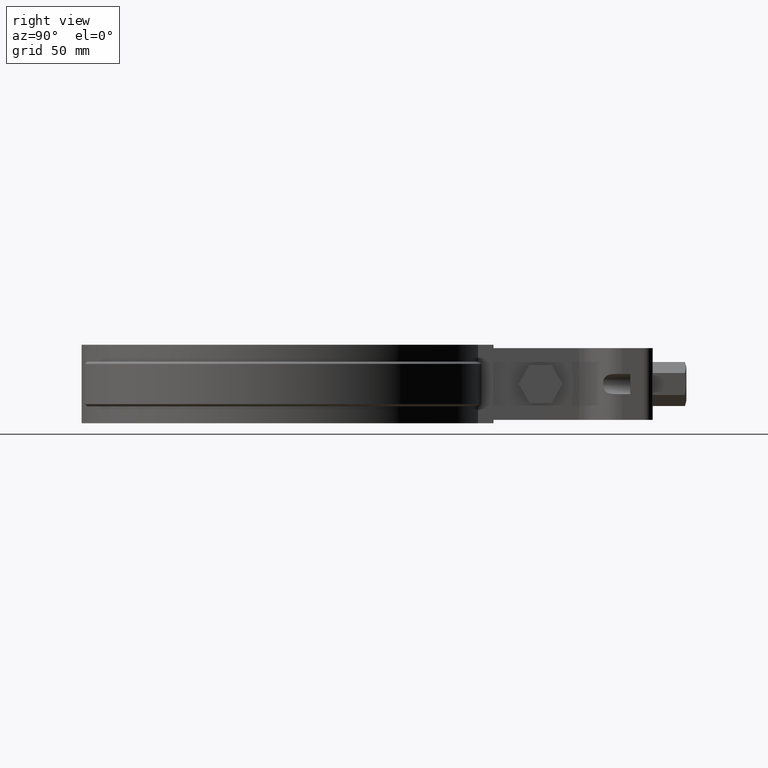
[diagram: clean part render]
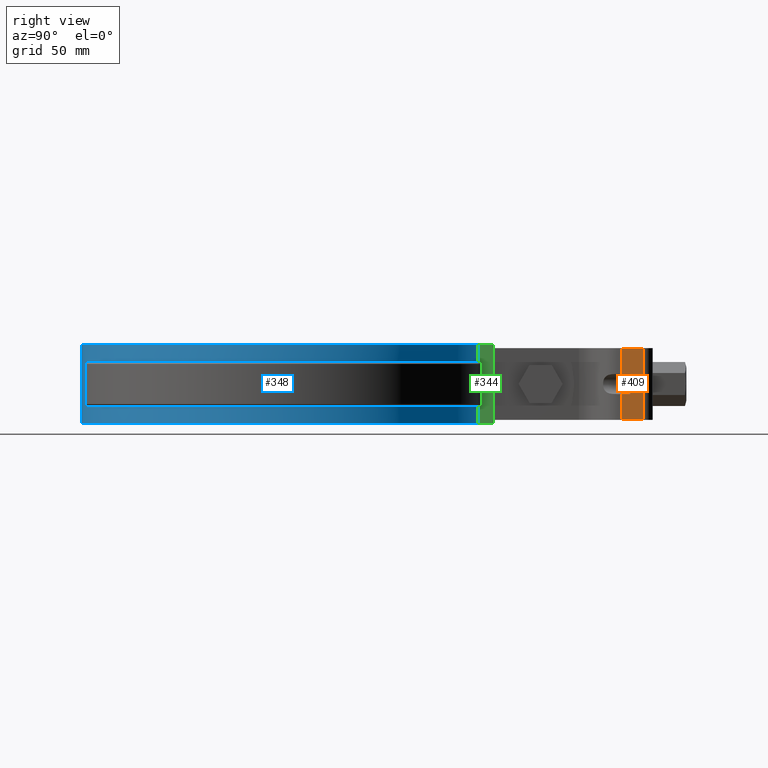
[diagram: same view with three faces highlighted in distinct colors, each labeled with its STEP entity id]
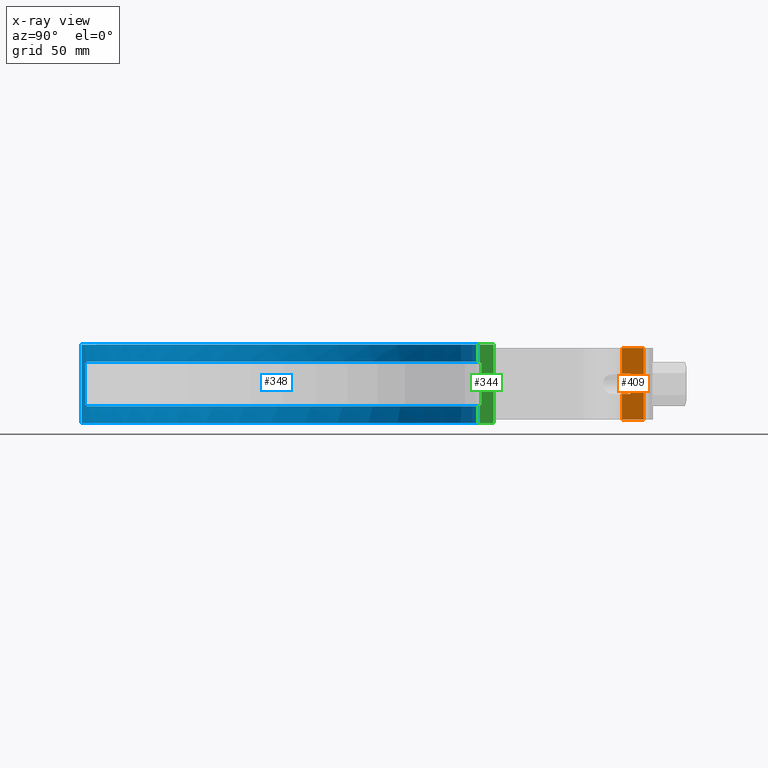
[diagram: x-ray of the same camera — body ghosted, the three highlighted faces saturated]
A machine part, right view with three faces highlighted in distinct colors.
The next image is the same camera in x-ray (body ghosted, the three faces saturated) — at least one of them is partly hidden behind the body in this view.
Their STEP definitions:

[orange] entity #409 — the highlighted planar face has unit normal (1, 0, 0).
#409 = ADVANCED_FACE( '', ( #689 ), #690, .T. );
#689 = FACE_OUTER_BOUND( '', #1816, .T. );
#690 = PLANE( '', #1817 );
#1816 = EDGE_LOOP( '', ( #4381, #4382, #4383, #4384, #4385, #4386, #4387, #4388 ) );
#1817 = AXIS2_PLACEMENT_3D( '', #4389, #4390, #4391 );
#4381 = ORIENTED_EDGE( '', *, *, #5265, .F. );
#4382 = ORIENTED_EDGE( '', *, *, #5267, .T. );
#4383 = ORIENTED_EDGE( '', *, *, #5319, .F. );
#4384 = ORIENTED_EDGE( '', *, *, #5270, .F. );
#4385 = ORIENTED_EDGE( '', *, *, #5305, .F. );
#4386 = ORIENTED_EDGE( '', *, *, #5244, .T. );
#4387 = ORIENTED_EDGE( '', *, *, #5317, .T. );
#4388 = ORIENTED_EDGE( '', *, *, #5297, .F. );
#4389 = CARTESIAN_POINT( '', ( 17.4999999999999, 152.308657504207, -31.9999999999968 ) );
#4390 = DIRECTION( '', ( 1.00000000000000, 2.34062543713563E-016, 2.13352989224126E-031 ) );
#4391 = DIRECTION( '', ( 0.000000000000000, -9.11521279052745E-016, 1.00000000000000 ) );
#5244 = EDGE_CURVE( '', #5930, #5928, #5931, .F. );
#5265 = EDGE_CURVE( '', #5968, #5970, #5971, .T. );
#5267 = EDGE_CURVE( '', #5968, #5973, #5974, .F. );
#5270 = EDGE_CURVE( '', #5977, #5979, #5980, .F. );
#5297 = EDGE_CURVE( '', #5970, #6028, #6029, .T. );
#5305 = EDGE_CURVE( '', #5930, #5977, #6043, .T. );
#5317 = EDGE_CURVE( '', #5928, #6028, #6062, .T. );
#5319 = EDGE_CURVE( '', #5979, #5973, #6064, .F. );
#5928 = VERTEX_POINT( '', #8895 );
#5930 = VERTEX_POINT( '', #8897 );
#5931 = LINE( '', #8898, #8899 );
#5968 = VERTEX_POINT( '', #8947 );
#5970 = VERTEX_POINT( '', #8968 );
#5971 = LINE( '', #8969, #8970 );
#5973 = VERTEX_POINT( '', #8972 );
#5974 = LINE( '', #8973, #8974 );
#5977 = VERTEX_POINT( '', #8977 );
#5979 = VERTEX_POINT( '', #8994 );
#5980 = LINE( '', #8995, #8996 );
#6028 = VERTEX_POINT( '', #9057 );
#6029 = LINE( '', #9058, #9059 );
#6043 = LINE( '', #9076, #9077 );
#6062 = LINE( '', #9118, #9119 );
#6064 = LINE( '', #9122, #9123 );
#8895 = CARTESIAN_POINT( '', ( 17.4999999999999, 162.102986998689, -31.9999999999985 ) );
#8897 = CARTESIAN_POINT( '', ( 17.4999999999999, 152.308657504207, -31.9999999999968 ) );
#8898 = CARTESIAN_POINT( '', ( 17.4999999999999, 152.308657504207, -31.9999999999968 ) );
#8899 = VECTOR( '', #9923, 1000.00000000000 );
#8947 = CARTESIAN_POINT( '', ( 17.4999999999999, 152.308657504211, -11.4999999999975 ) );
#8968 = CARTESIAN_POINT( '', ( 17.4999999999999, 152.308657504213, 2.07472927726826E-012 ) );
#8969 = CARTESIAN_POINT( '', ( 17.4999999999999, 152.308657504207, -31.9999999999968 ) );
#8970 = VECTOR( '', #9959, 1000.00000000000 );
#8972 = CARTESIAN_POINT( '', ( 17.4999999999999, 156.102986998693, -11.4999999999982 ) );
#8973 = CARTESIAN_POINT( '', ( 17.4999999999999, 141.102986998694, -11.4999999999956 ) );
#8974 = VECTOR( '', #9963, 1000.00000000000 );
#8977 = CARTESIAN_POINT( '', ( 17.4999999999999, 152.308657504209, -20.4999999999972 ) );
#8994 = CARTESIAN_POINT( '', ( 17.4999999999999, 156.102986998691, -20.4999999999979 ) );
#8995 = CARTESIAN_POINT( '', ( 17.4999999999999, 141.102986998692, -20.4999999999953 ) );
#8996 = VECTOR( '', #9967, 1000.00000000000 );
#9057 = CARTESIAN_POINT( '', ( 17.4999999999999, 162.102986998695, 3.60822483003176E-013 ) );
#9058 = CARTESIAN_POINT( '', ( 17.4999999999999, 162.102986998695, 3.64291929955122E-013 ) );
#9059 = VECTOR( '', #10020, 1000.00000000000 );
#9076 = CARTESIAN_POINT( '', ( 17.4999999999999, 152.308657504207, -31.9999999999968 ) );
#9077 = VECTOR( '', #10036, 1000.00000000000 );
#9118 = CARTESIAN_POINT( '', ( 17.4999999999999, 162.102986998689, -31.9999999999985 ) );
#9119 = VECTOR( '', #10053, 1000.00000000000 );
#9122 = CARTESIAN_POINT( '', ( 17.4999999999999, 156.102986998692, -15.9999999999980 ) );
#9123 = VECTOR( '', #10055, 1000.00000000000 );
#9923 = DIRECTION( '', ( 2.34062543713563E-016, -1.00000000000000, 1.75137682134619E-013 ) );
#9959 = DIRECTION( '', ( -9.11521279052786E-016, 1.75137682134619E-013, 1.00000000000000 ) );
#9963 = DIRECTION( '', ( 3.03451482752472E-016, -1.00000000000000, 1.75321373087692E-013 ) );
#9967 = DIRECTION( '', ( 3.03451482752472E-016, -1.00000000000000, 1.75321373087692E-013 ) );
#10020 = DIRECTION( '', ( -2.34062543713563E-016, 1.00000000000000, -1.75137682134619E-013 ) );
#10036 = DIRECTION( '', ( -9.11521279052786E-016, 1.75137682134619E-013, 1.00000000000000 ) );
#10053 = DIRECTION( '', ( -9.11521279052786E-016, 1.75137682134619E-013, 1.00000000000000 ) );
#10055 = DIRECTION( '', ( 4.12495195414839E-029, -1.75321373087692E-013, -1.00000000000000 ) );

[blue] entity #348 — the highlighted cylindrical surface (partial cylindrical patch) has radius 88.6 mm, axis along (-0, 0, 1).
#348 = ADVANCED_FACE( '', ( #563 ), #564, .T. );
#563 = FACE_OUTER_BOUND( '', #1317, .T. );
#564 = CYLINDRICAL_SURFACE( '', #1318, 88.6000000000001 );
#1317 = EDGE_LOOP( '', ( #3064, #3065, #3066, #3067, #3068, #3069, #3070, #3071, #3072, #3073, #3074, #3075, #3076, #3077, #3078, #3079 ) );
#1318 = AXIS2_PLACEMENT_3D( '', #3080, #3081, #3082 );
#3064 = ORIENTED_EDGE( '', *, *, #5098, .F. );
#3065 = ORIENTED_EDGE( '', *, *, #5094, .T. );
#3066 = ORIENTED_EDGE( '', *, *, #5103, .F. );
#3067 = ORIENTED_EDGE( '', *, *, #5104, .F. );
#3068 = ORIENTED_EDGE( '', *, *, #5105, .T. );
#3069 = ORIENTED_EDGE( '', *, *, #5106, .T. );
#3070 = ORIENTED_EDGE( '', *, *, #5107, .F. );
#3071 = ORIENTED_EDGE( '', *, *, #5108, .T. );
#3072 = ORIENTED_EDGE( '', *, *, #5109, .F. );
#3073 = ORIENTED_EDGE( '', *, *, #5110, .F. );
#3074 = ORIENTED_EDGE( '', *, *, #5111, .T. );
#3075 = ORIENTED_EDGE( '', *, *, #5091, .T. );
#3076 = ORIENTED_EDGE( '', *, *, #5112, .T. );
#3077 = ORIENTED_EDGE( '', *, *, #5113, .T. );
#3078 = ORIENTED_EDGE( '', *, *, #5114, .T. );
#3079 = ORIENTED_EDGE( '', *, *, #5115, .T. );
#3080 = CARTESIAN_POINT( '', ( 6.93889390390723E-015, -9.71445146547012E-014, -33.5000000000000 ) );
#3081 = DIRECTION( '', ( -6.97124570104510E-034, 2.54514470950043E-019, 1.00000000000000 ) );
#3082 = DIRECTION( '', ( 3.52673439356533E-069, 1.00000000000000, -2.54514470950043E-019 ) );
#5091 = EDGE_CURVE( '', #5676, #5674, #5677, .F. );
#5094 = EDGE_CURVE( '', #5666, #5679, #5681, .F. );
#5098 = EDGE_CURVE( '', #5666, #5687, #5688, .F. );
#5103 = EDGE_CURVE( '', #5695, #5679, #5696, .T. );
#5104 = EDGE_CURVE( '', #5697, #5695, #5698, .F. );
#5105 = EDGE_CURVE( '', #5697, #5699, #5700, .F. );
#5106 = EDGE_CURVE( '', #5699, #5701, #5702, .F. );
#5107 = EDGE_CURVE( '', #5703, #5701, #5704, .F. );
#5108 = EDGE_CURVE( '', #5703, #5705, #5706, .T. );
#5109 = EDGE_CURVE( '', #5707, #5705, #5708, .F. );
#5110 = EDGE_CURVE( '', #5709, #5707, #5710, .F. );
#5111 = EDGE_CURVE( '', #5709, #5676, #5711, .T. );
#5112 = EDGE_CURVE( '', #5674, #5712, #5713, .F. );
#5113 = EDGE_CURVE( '', #5712, #5714, #5715, .T. );
#5114 = EDGE_CURVE( '', #5714, #5716, #5717, .F. );
#5115 = EDGE_CURVE( '', #5716, #5687, #5718, .F. );
#5666 = VERTEX_POINT( '', #7570 );
#5674 = VERTEX_POINT( '', #7586 );
#5676 = VERTEX_POINT( '', #7589 );
#5677 = LINE( '', #7590, #7591 );
#5679 = VERTEX_POINT( '', #7594 );
#5681 = LINE( '', #7597, #7598 );
#5687 = VERTEX_POINT( '', #7605 );
#5688 = CIRCLE( '', #7606, 88.6000000000001 );
#5695 = VERTEX_POINT( '', #7615 );
#5696 = CIRCLE( '', #7616, 88.6000000000001 );
#5697 = VERTEX_POINT( '', #7617 );
#5698 = LINE( '', #7618, #7619 );
#5699 = VERTEX_POINT( '', #7620 );
#5700 = CIRCLE( '', #7621, 88.6000000000001 );
#5701 = VERTEX_POINT( '', #7622 );
#5702 = ELLIPSE( '', #7623, 125.299321626256, 88.6000000000001 );
#5703 = VERTEX_POINT( '', #7624 );
#5704 = LINE( '', #7625, #7626 );
#5705 = VERTEX_POINT( '', #7627 );
#5706 = ELLIPSE( '', #7628, 125.299321626256, 88.6000000000001 );
#5707 = VERTEX_POINT( '', #7629 );
#5708 = CIRCLE( '', #7630, 88.6000000000001 );
#5709 = VERTEX_POINT( '', #7631 );
#5710 = LINE( '', #7632, #7633 );
#5711 = CIRCLE( '', #7634, 88.6000000000001 );
#5712 = VERTEX_POINT( '', #7635 );
#5713 = CIRCLE( '', #7636, 88.6000000000001 );
#5714 = VERTEX_POINT( '', #7637 );
#5715 = ELLIPSE( '', #7638, 125.299321626256, 88.6000000000001 );
#5716 = VERTEX_POINT( '', #7639 );
#5717 = LINE( '', #7640, #7641 );
#5718 = ELLIPSE( '', #7642, 125.299321626256, 88.6000000000001 );
#7570 = CARTESIAN_POINT( '', ( 8.39999999999999, 88.2009070248146, -6.00000000000000 ) );
#7586 = CARTESIAN_POINT( '', ( 8.39999999999999, 88.2009070248147, -26.0000000000000 ) );
#7589 = CARTESIAN_POINT( '', ( 8.39999999999999, 88.2009070248147, -33.5000000000000 ) );
#7590 = CARTESIAN_POINT( '', ( 8.39999999999999, 88.2009070248147, -33.5000000000000 ) );
#7591 = VECTOR( '', #9712, 1000.00000000000 );
#7594 = CARTESIAN_POINT( '', ( 8.39999999999999, 88.2009070248147, 1.50000000000000 ) );
#7597 = CARTESIAN_POINT( '', ( 8.39999999999999, 88.2009070248147, -33.5000000000000 ) );
#7598 = VECTOR( '', #9715, 1000.00000000000 );
#7605 = CARTESIAN_POINT( '', ( 20.8985645440072, -86.1000000000000, -6.00000000000000 ) );
#7606 = AXIS2_PLACEMENT_3D( '', #9723, #9724, #9725 );
#7615 = CARTESIAN_POINT( '', ( -8.40000000000000, 88.2009070248147, 1.50000000000000 ) );
#7616 = AXIS2_PLACEMENT_3D( '', #9734, #9735, #9736 );
#7617 = CARTESIAN_POINT( '', ( -8.40000000000000, 88.2009070248147, -6.00000000000000 ) );
#7618 = CARTESIAN_POINT( '', ( -8.40000000000000, 88.2009070248147, -33.5000000000000 ) );
#7619 = VECTOR( '', #9737, 1000.00000000000 );
#7620 = CARTESIAN_POINT( '', ( -20.8985645440072, -86.1000000000000, -6.00000000000000 ) );
#7621 = AXIS2_PLACEMENT_3D( '', #9738, #9739, #9740 );
#7622 = CARTESIAN_POINT( '', ( -16.2342231104551, -87.1000000000000, -7.00000000000000 ) );
#7623 = AXIS2_PLACEMENT_3D( '', #9741, #9742, #9743 );
#7624 = CARTESIAN_POINT( '', ( -16.2342231104551, -87.1000000000000, -25.0000000000000 ) );
#7625 = CARTESIAN_POINT( '', ( -16.2342231104551, -87.1000000000000, -33.5000000000000 ) );
#7626 = VECTOR( '', #9744, 1000.00000000000 );
#7627 = CARTESIAN_POINT( '', ( -20.8985645440071, -86.1000000000000, -26.0000000000000 ) );
#7628 = AXIS2_PLACEMENT_3D( '', #9745, #9746, #9747 );
#7629 = CARTESIAN_POINT( '', ( -8.40000000000000, 88.2009070248146, -26.0000000000000 ) );
#7630 = AXIS2_PLACEMENT_3D( '', #9748, #9749, #9750 );
#7631 = CARTESIAN_POINT( '', ( -8.40000000000000, 88.2009070248147, -33.5000000000000 ) );
#7632 = CARTESIAN_POINT( '', ( -8.40000000000000, 88.2009070248147, -33.5000000000000 ) );
#7633 = VECTOR( '', #9751, 1000.00000000000 );
#7634 = AXIS2_PLACEMENT_3D( '', #9752, #9753, #9754 );
#7635 = CARTESIAN_POINT( '', ( 20.8985645440072, -86.1000000000000, -26.0000000000000 ) );
#7636 = AXIS2_PLACEMENT_3D( '', #9755, #9756, #9757 );
#7637 = CARTESIAN_POINT( '', ( 16.2342231104551, -87.1000000000000, -25.0000000000000 ) );
#7638 = AXIS2_PLACEMENT_3D( '', #9758, #9759, #9760 );
#7639 = CARTESIAN_POINT( '', ( 16.2342231104551, -87.1000000000000, -7.00000000000000 ) );
#7640 = CARTESIAN_POINT( '', ( 16.2342231104551, -87.1000000000000, -33.5000000000000 ) );
#7641 = VECTOR( '', #9761, 1000.00000000000 );
#7642 = AXIS2_PLACEMENT_3D( '', #9762, #9763, #9764 );
#9712 = DIRECTION( '', ( 6.97124570104510E-034, -2.54514470950043E-019, -1.00000000000000 ) );
#9715 = DIRECTION( '', ( 6.97124570104510E-034, -2.54514470950043E-019, -1.00000000000000 ) );
#9723 = CARTESIAN_POINT( '', ( 6.93889390390723E-015, -9.71375155067501E-014, -6.00000000000000 ) );
#9724 = DIRECTION( '', ( 0.000000000000000, 0.000000000000000, 1.00000000000000 ) );
#9725 = DIRECTION( '', ( 1.00000000000000, 0.000000000000000, 0.000000000000000 ) );
#9734 = CARTESIAN_POINT( '', ( 6.93889390390723E-015, -9.71356066482180E-014, 1.50000000000000 ) );
#9735 = DIRECTION( '', ( -1.77428291146426E-052, 2.54514470950043E-019, 1.00000000000000 ) );
#9736 = DIRECTION( '', ( 0.000000000000000, -1.00000000000000, 2.54514470950043E-019 ) );
#9737 = DIRECTION( '', ( 6.97124570104510E-034, -2.54514470950043E-019, -1.00000000000000 ) );
#9738 = CARTESIAN_POINT( '', ( 6.93889390390723E-015, -9.71375155067501E-014, -6.00000000000000 ) );
#9739 = DIRECTION( '', ( 0.000000000000000, 0.000000000000000, -1.00000000000000 ) );
#9740 = DIRECTION( '', ( -1.00000000000000, 0.000000000000000, 0.000000000000000 ) );
#9741 = CARTESIAN_POINT( '', ( 6.93889390390723E-015, -9.71156018108013E-014, 80.0999999999998 ) );
#9742 = DIRECTION( '', ( 0.000000000000000, 0.707106781186547, -0.707106781186548 ) );
#9743 = DIRECTION( '', ( 9.85883021705312E-034, -0.707106781186548, -0.707106781186547 ) );
#9744 = DIRECTION( '', ( 6.97124570104510E-034, -2.54514470950043E-019, -1.00000000000000 ) );
#9745 = CARTESIAN_POINT( '', ( 6.93889390390723E-015, -9.71645194921179E-014, -112.100000000000 ) );
#9746 = DIRECTION( '', ( 0.000000000000000, -0.707106781186548, -0.707106781186548 ) );
#9747 = DIRECTION( '', ( 9.85883021705311E-034, 0.707106781186547, -0.707106781186547 ) );
#9748 = CARTESIAN_POINT( '', ( 6.93889390390723E-015, -9.71426057961691E-014, -26.0000000000000 ) );
#9749 = DIRECTION( '', ( 0.000000000000000, 0.000000000000000, -1.00000000000000 ) );
#9750 = DIRECTION( '', ( -1.00000000000000, 0.000000000000000, 0.000000000000000 ) );
#9751 = DIRECTION( '', ( 6.97124570104510E-034, -2.54514470950043E-019, -1.00000000000000 ) );
#9752 = CARTESIAN_POINT( '', ( 6.93889390390723E-015, -9.71445146547012E-014, -33.5000000000000 ) );
#9753 = DIRECTION( '', ( -1.77428291146426E-052, 2.54514470950043E-019, 1.00000000000000 ) );
#9754 = DIRECTION( '', ( 0.000000000000000, -1.00000000000000, 2.54514470950043E-019 ) );
#9755 = CARTESIAN_POINT( '', ( 6.93889390390723E-015, -9.71426057961691E-014, -26.0000000000000 ) );
#9756 = DIRECTION( '', ( 0.000000000000000, 0.000000000000000, 1.00000000000000 ) );
#9757 = DIRECTION( '', ( 1.00000000000000, 0.000000000000000, 0.000000000000000 ) );
#9758 = CARTESIAN_POINT( '', ( 6.93889390390723E-015, -9.71645194921179E-014, -112.100000000000 ) );
#9759 = DIRECTION( '', ( 0.000000000000000, -0.707106781186548, -0.707106781186548 ) );
#9760 = DIRECTION( '', ( 9.85883021705311E-034, 0.707106781186547, -0.707106781186547 ) );
#9761 = DIRECTION( '', ( 6.97124570104510E-034, -2.54514470950043E-019, -1.00000000000000 ) );
#9762 = CARTESIAN_POINT( '', ( 6.93889390390723E-015, -9.71156018108013E-014, 80.0999999999998 ) );
#9763 = DIRECTION( '', ( 0.000000000000000, 0.707106781186547, -0.707106781186548 ) );
#9764 = DIRECTION( '', ( 9.85883021705312E-034, -0.707106781186548, -0.707106781186547 ) );

[green] entity #344 — the highlighted planar face has unit normal (1, -0, -0).
#344 = ADVANCED_FACE( '', ( #555 ), #556, .T. );
#555 = FACE_OUTER_BOUND( '', #1309, .T. );
#556 = PLANE( '', #1310 );
#1309 = EDGE_LOOP( '', ( #3029, #3030, #3031, #3032, #3033, #3034, #3035, #3036, #3037, #3038 ) );
#1310 = AXIS2_PLACEMENT_3D( '', #3039, #3040, #3041 );
#3029 = ORIENTED_EDGE( '', *, *, #5086, .F. );
#3030 = ORIENTED_EDGE( '', *, *, #5087, .T. );
#3031 = ORIENTED_EDGE( '', *, *, #5088, .F. );
#3032 = ORIENTED_EDGE( '', *, *, #5089, .T. );
#3033 = ORIENTED_EDGE( '', *, *, #5090, .T. );
#3034 = ORIENTED_EDGE( '', *, *, #5091, .F. );
#3035 = ORIENTED_EDGE( '', *, *, #5092, .T. );
#3036 = ORIENTED_EDGE( '', *, *, #5057, .T. );
#3037 = ORIENTED_EDGE( '', *, *, #5093, .F. );
#3038 = ORIENTED_EDGE( '', *, *, #5094, .F. );
#3039 = CARTESIAN_POINT( '', ( 8.39999999999999, 88.2009070248147, -33.5000000000000 ) );
#3040 = DIRECTION( '', ( 1.00000000000000, -6.93889390390723E-017, -4.95981768998277E-050 ) );
#3041 = DIRECTION( '', ( 0.000000000000000, -7.14785059213824E-034, 1.00000000000000 ) );
#5057 = EDGE_CURVE( '', #5611, #5608, #5612, .T. );
#5086 = EDGE_CURVE( '', #5665, #5666, #5667, .F. );
#5087 = EDGE_CURVE( '', #5665, #5668, #5669, .F. );
#5088 = EDGE_CURVE( '', #5670, #5668, #5671, .F. );
#5089 = EDGE_CURVE( '', #5670, #5672, #5673, .F. );
#5090 = EDGE_CURVE( '', #5672, #5674, #5675, .T. );
#5091 = EDGE_CURVE( '', #5676, #5674, #5677, .F. );
#5092 = EDGE_CURVE( '', #5676, #5611, #5678, .F. );
#5093 = EDGE_CURVE( '', #5679, #5608, #5680, .T. );
#5094 = EDGE_CURVE( '', #5666, #5679, #5681, .F. );
#5608 = VERTEX_POINT( '', #7457 );
#5611 = VERTEX_POINT( '', #7461 );
#5612 = LINE( '', #7462, #7463 );
#5665 = VERTEX_POINT( '', #7569 );
#5666 = VERTEX_POINT( '', #7570 );
#5667 = LINE( '', #7571, #7572 );
#5668 = VERTEX_POINT( '', #7573 );
#5669 = B_SPLINE_CURVE_WITH_KNOTS( '', 3, ( #7574, #7575, #7576, #7577 ), .UNSPECIFIED., .F., .F., ( 4, 4 ), ( 706.979638180273, 706.981055525702 ), .UNSPECIFIED. );
#5670 = VERTEX_POINT( '', #7578 );
#5671 = LINE( '', #7579, #7580 );
#5672 = VERTEX_POINT( '', #7581 );
#5673 = B_SPLINE_CURVE_WITH_KNOTS( '', 3, ( #7582, #7583, #7584, #7585 ), .UNSPECIFIED., .F., .F., ( 4, 4 ), ( 707.223428894749, 707.224858261947 ), .UNSPECIFIED. );
#5674 = VERTEX_POINT( '', #7586 );
#5675 = LINE( '', #7587, #7588 );
#5676 = VERTEX_POINT( '', #7589 );
#5677 = LINE( '', #7590, #7591 );
#5678 = LINE( '', #7592, #7593 );
#5679 = VERTEX_POINT( '', #7594 );
#5680 = LINE( '', #7595, #7596 );
#5681 = LINE( '', #7597, #7598 );
#7457 = CARTESIAN_POINT( '', ( 8.39999999999999, 95.1000000000000, 1.50000000000000 ) );
#7461 = CARTESIAN_POINT( '', ( 8.39999999999999, 95.1000000000000, -33.5000000000000 ) );
#7462 = CARTESIAN_POINT( '', ( 8.39999999999999, 95.1000000000000, -33.5000000000000 ) );
#7463 = VECTOR( '', #9671, 1000.00000000000 );
#7569 = CARTESIAN_POINT( '', ( 8.39999999999999, 88.7031566518351, -6.00000000000000 ) );
#7570 = CARTESIAN_POINT( '', ( 8.39999999999999, 88.2009070248146, -6.00000000000000 ) );
#7571 = CARTESIAN_POINT( '', ( 8.39999999999998, -72.1000000000000, -6.00000000000000 ) );
#7572 = VECTOR( '', #9709, 1000.00000000000 );
#7573 = CARTESIAN_POINT( '', ( 8.39999999999999, 89.7075805046597, -7.00000000000000 ) );
#7574 = CARTESIAN_POINT( '', ( 8.39999999999999, 89.7075805046707, -7.00000000001099 ) );
#7575 = CARTESIAN_POINT( '', ( 8.39999999999999, 89.3727807525708, -6.66665842715370 ) );
#7576 = CARTESIAN_POINT( '', ( 8.39999999999999, 89.0379728940596, -6.33332500093850 ) );
#7577 = CARTESIAN_POINT( '', ( 8.39999999999999, 88.7031566518569, -6.00000000002171 ) );
#7578 = CARTESIAN_POINT( '', ( 8.39999999999999, 89.7075805046597, -25.0000000000000 ) );
#7579 = CARTESIAN_POINT( '', ( 8.39999999999999, 89.7075805046597, -26.0000000000000 ) );
#7580 = VECTOR( '', #9710, 1000.00000000000 );
#7581 = CARTESIAN_POINT( '', ( 8.39999999999999, 88.7031566518351, -26.0000000000000 ) );
#7582 = CARTESIAN_POINT( '', ( 8.39999999999999, 88.7031566518215, -26.0000000000136 ) );
#7583 = CARTESIAN_POINT( '', ( 8.39999999999999, 89.0379728823533, -25.6666750107158 ) );
#7584 = CARTESIAN_POINT( '', ( 8.39999999999999, 89.3727807409911, -25.3333415843756 ) );
#7585 = CARTESIAN_POINT( '', ( 8.39999999999999, 89.7075805046234, -25.0000000000362 ) );
#7586 = CARTESIAN_POINT( '', ( 8.39999999999999, 88.2009070248147, -26.0000000000000 ) );
#7587 = CARTESIAN_POINT( '', ( 8.39999999999999, 88.2009070248147, -26.0000000000000 ) );
#7588 = VECTOR( '', #9711, 1000.00000000000 );
#7589 = CARTESIAN_POINT( '', ( 8.39999999999999, 88.2009070248147, -33.5000000000000 ) );
#7590 = CARTESIAN_POINT( '', ( 8.39999999999999, 88.2009070248147, -33.5000000000000 ) );
#7591 = VECTOR( '', #9712, 1000.00000000000 );
#7592 = CARTESIAN_POINT( '', ( 8.39999999999999, 88.2009070248147, -33.5000000000000 ) );
#7593 = VECTOR( '', #9713, 1000.00000000000 );
#7594 = CARTESIAN_POINT( '', ( 8.39999999999999, 88.2009070248147, 1.50000000000000 ) );
#7595 = CARTESIAN_POINT( '', ( 8.39999999999999, 86.2480144698995, 1.50000000000000 ) );
#7596 = VECTOR( '', #9714, 1000.00000000000 );
#7597 = CARTESIAN_POINT( '', ( 8.39999999999999, 88.2009070248147, -33.5000000000000 ) );
#7598 = VECTOR( '', #9715, 1000.00000000000 );
#9671 = DIRECTION( '', ( 1.76604891093143E-035, 2.54514470950043E-019, 1.00000000000000 ) );
#9709 = DIRECTION( '', ( 6.93889390390723E-017, 1.00000000000000, 0.000000000000000 ) );
#9710 = DIRECTION( '', ( 0.000000000000000, 0.000000000000000, -1.00000000000000 ) );
#9711 = DIRECTION( '', ( -6.93889390390723E-017, -1.00000000000000, 0.000000000000000 ) );
#9712 = DIRECTION( '', ( 6.97124570104510E-034, -2.54514470950043E-019, -1.00000000000000 ) );
#9713 = DIRECTION( '', ( -6.93889390390723E-017, -1.00000000000000, 2.54514470950043E-019 ) );
#9714 = DIRECTION( '', ( 6.93889390390723E-017, 1.00000000000000, -2.54514470950043E-019 ) );
#9715 = DIRECTION( '', ( 6.97124570104510E-034, -2.54514470950043E-019, -1.00000000000000 ) );